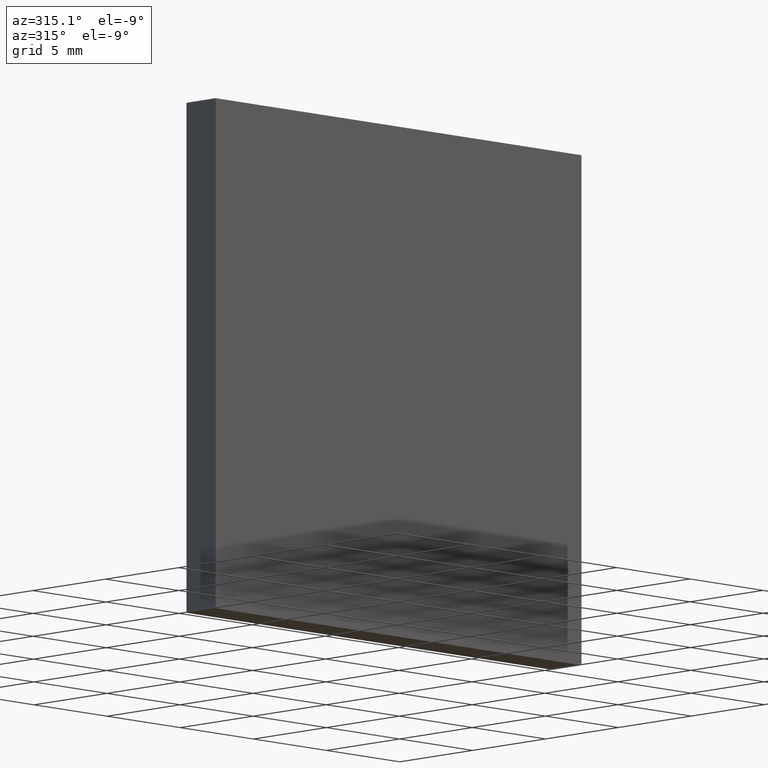
[diagram: clean part render]
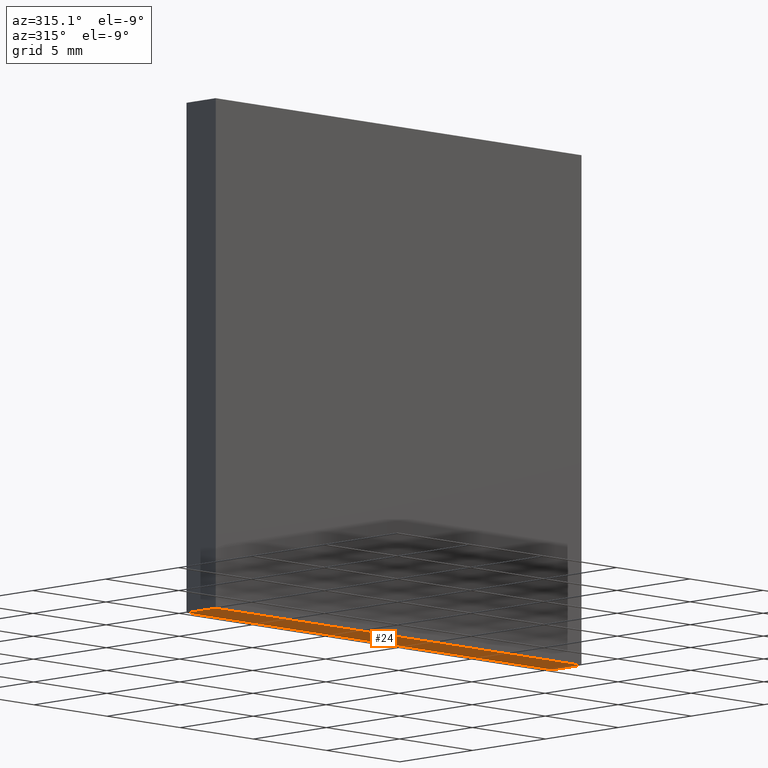
[diagram: same view with one face highlighted and labeled with its STEP entity id]
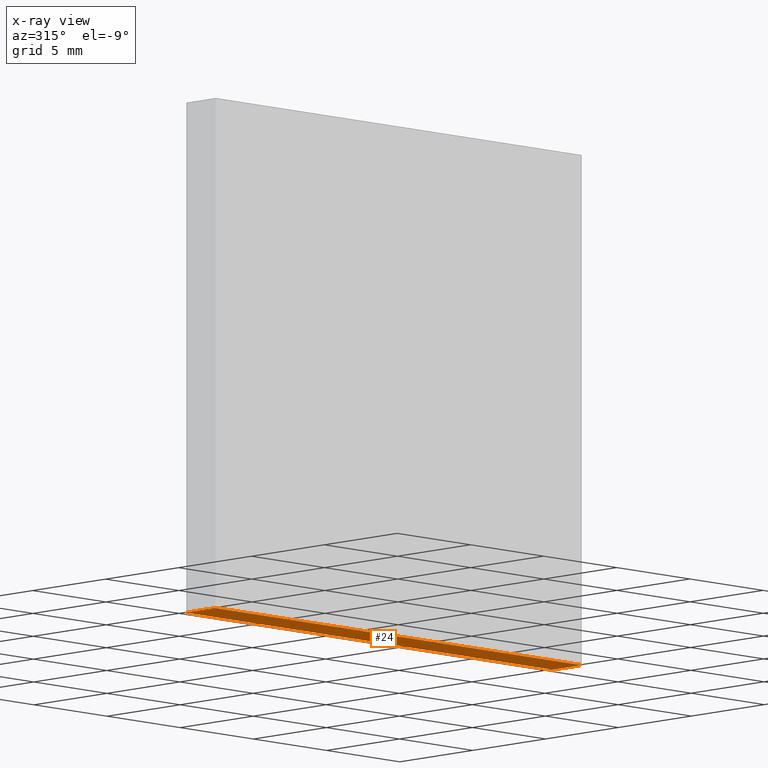
[diagram: x-ray of the same camera — body ghosted, the highlighted face saturated]
A machine part, auxiliary view. The second image highlights one B-rep face of the part: STEP entity #24.
The next image is the same camera in x-ray: the body ghosted, the highlighted face saturated — about 0% of this face is hidden behind the body in this view.
In plain terms, the highlighted planar face has unit normal (0, 0, 1).
Its self-contained STEP definition (entity closure, byte-faithful):
#4 = CARTESIAN_POINT ( 'NONE',  ( 12.50000000000000200, 0.0000000000000000000, -12.50000000000000000 ) ) ;
#10 = VECTOR ( 'NONE', #32, 1000.000000000000000 ) ;
#24 = ADVANCED_FACE ( 'NONE', ( #87 ), #90, .F. ) ;
#27 = CARTESIAN_POINT ( 'NONE',  ( -12.49999999999999800, 0.0000000000000000000, -12.50000000000000000 ) ) ;
#28 = LINE ( 'NONE', #27, #112 ) ;
#32 = DIRECTION ( 'NONE',  ( -0.0000000000000000000, -1.000000000000000000, -0.0000000000000000000 ) ) ;
#42 = CARTESIAN_POINT ( 'NONE',  ( -12.49999999999999800, 2.000000000000000000, -12.50000000000000000 ) ) ;
#46 = VERTEX_POINT ( 'NONE', #42 ) ;
#52 = DIRECTION ( 'NONE',  ( -1.000000000000000000, -0.0000000000000000000, -0.0000000000000000000 ) ) ;
#56 = DIRECTION ( 'NONE',  ( -0.0000000000000000000, -1.000000000000000000, -0.0000000000000000000 ) ) ;
#63 = LINE ( 'NONE', #168, #68 ) ;
#64 = EDGE_CURVE ( 'NONE', #179, #165, #28, .T. ) ;
#68 = VECTOR ( 'NONE', #52, 1000.000000000000000 ) ;
#69 = CARTESIAN_POINT ( 'NONE',  ( 12.50000000000000200, 2.000000000000000000, -12.50000000000000000 ) ) ;
#75 = DIRECTION ( 'NONE',  ( 0.0000000000000000000, 0.0000000000000000000, 1.000000000000000000 ) ) ;
#87 = FACE_OUTER_BOUND ( 'NONE', #162, .T. ) ;
#88 = CARTESIAN_POINT ( 'NONE',  ( -12.49999999999999800, 0.0000000000000000000, -12.50000000000000000 ) ) ;
#90 = PLANE ( 'NONE',  #181 ) ;
#112 = VECTOR ( 'NONE', #171, 1000.000000000000000 ) ;
#119 = ORIENTED_EDGE ( 'NONE', *, *, #158, .F. ) ;
#123 = CARTESIAN_POINT ( 'NONE',  ( -12.49999999999999800, 2.000000000000000000, -12.50000000000000000 ) ) ;
#140 = VERTEX_POINT ( 'NONE', #69 ) ;
#143 = CARTESIAN_POINT ( 'NONE',  ( 12.50000000000000200, 2.000000000000000000, -12.50000000000000000 ) ) ;
#146 = ORIENTED_EDGE ( 'NONE', *, *, #64, .T. ) ;
#156 = VECTOR ( 'NONE', #56, 1000.000000000000000 ) ;
#158 = EDGE_CURVE ( 'NONE', #140, #46, #63, .T. ) ;
#162 = EDGE_LOOP ( 'NONE', ( #146, #180, #119, #198 ) ) ;
#165 = VERTEX_POINT ( 'NONE', #88 ) ;
#167 = LINE ( 'NONE', #191, #156 ) ;
#168 = CARTESIAN_POINT ( 'NONE',  ( -12.49999999999999800, 2.000000000000000000, -12.50000000000000000 ) ) ;
#171 = DIRECTION ( 'NONE',  ( -1.000000000000000000, -0.0000000000000000000, -0.0000000000000000000 ) ) ;
#172 = DIRECTION ( 'NONE',  ( 1.000000000000000000, 0.0000000000000000000, -0.0000000000000000000 ) ) ;
#177 = EDGE_CURVE ( 'NONE', #46, #165, #167, .T. ) ;
#179 = VERTEX_POINT ( 'NONE', #4 ) ;
#180 = ORIENTED_EDGE ( 'NONE', *, *, #177, .F. ) ;
#181 = AXIS2_PLACEMENT_3D ( 'NONE', #123, #75, #172 ) ;
#184 = EDGE_CURVE ( 'NONE', #140, #179, #199, .T. ) ;
#191 = CARTESIAN_POINT ( 'NONE',  ( -12.49999999999999800, 2.000000000000000000, -12.50000000000000000 ) ) ;
#198 = ORIENTED_EDGE ( 'NONE', *, *, #184, .T. ) ;
#199 = LINE ( 'NONE', #143, #10 ) ;